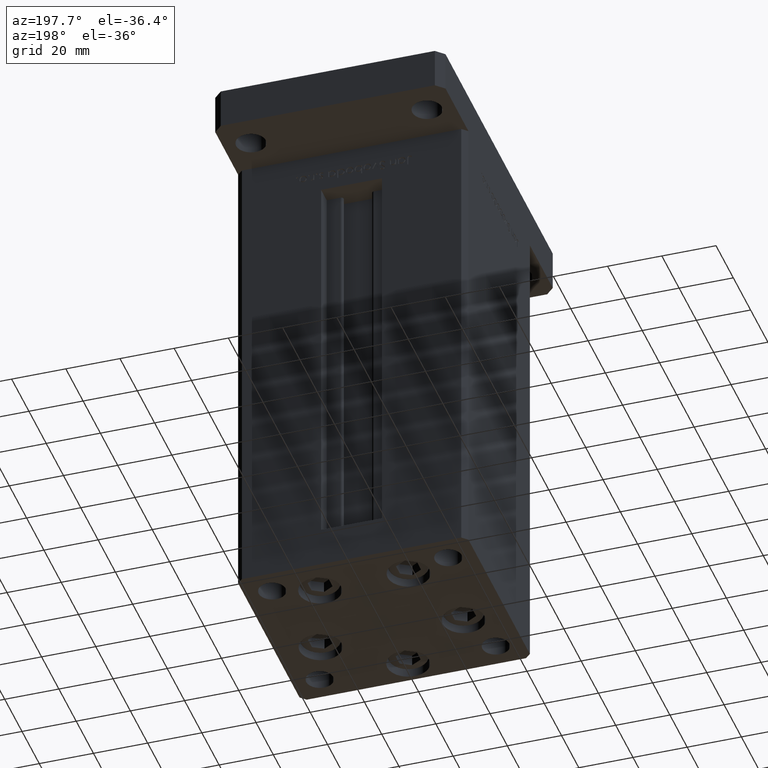
[diagram: clean part render]
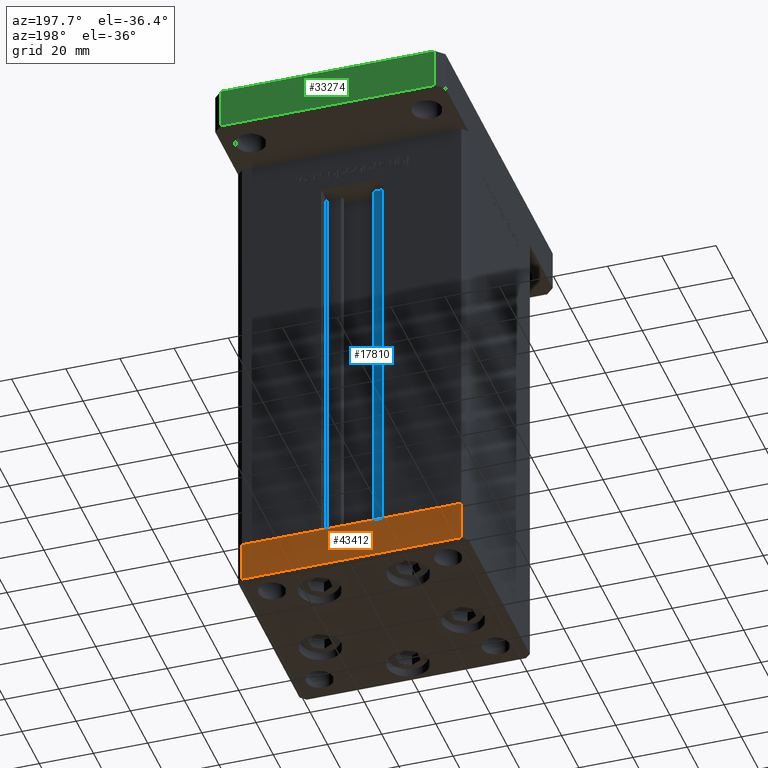
[diagram: same view with three faces highlighted in distinct colors, each labeled with its STEP entity id]
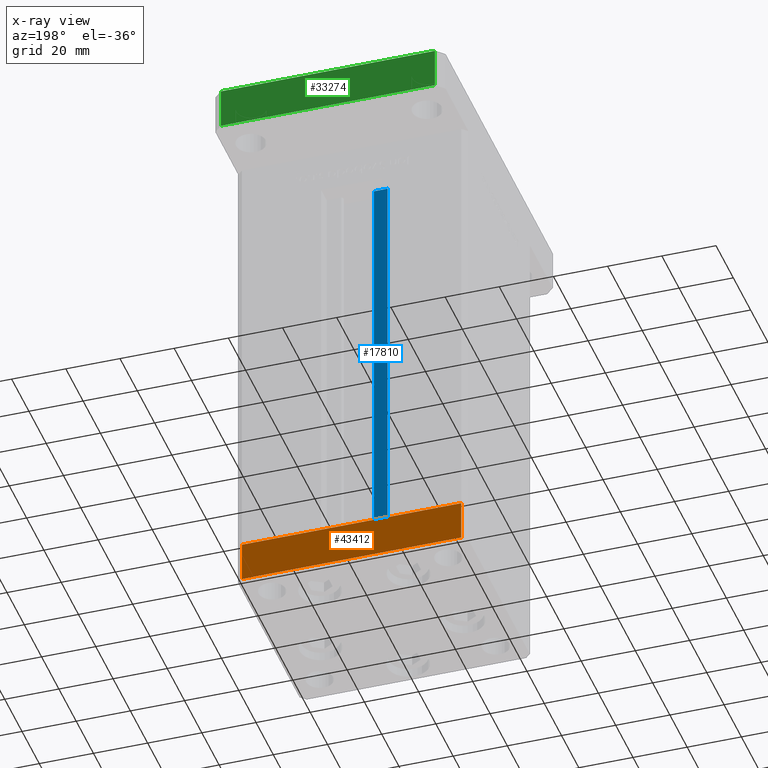
[diagram: x-ray of the same camera — body ghosted, the three highlighted faces saturated]
A machine part, auxiliary view with three faces highlighted in distinct colors.
The next image is the same camera in x-ray (body ghosted, the three faces saturated) — at least one of them is partly hidden behind the body in this view.
Their STEP definitions:

[orange] entity #43412 — the highlighted planar face has unit normal (0, 1, 0).
#1749 = CARTESIAN_POINT ( 'NONE',  ( -40.50000000000000711, 37.49999999999997868, 0.000000000000000000 ) ) ;
#2444 = EDGE_CURVE ( 'NONE', #38601, #42583, #44340, .T. ) ;
#4690 = DIRECTION ( 'NONE',  ( -1.000000000000000000, -3.426614273534436165E-16, 0.000000000000000000 ) ) ;
#7952 = DIRECTION ( 'NONE',  ( -3.426614273534436165E-16, 1.000000000000000000, 0.000000000000000000 ) ) ;
#8757 = LINE ( 'NONE', #25283, #13433 ) ;
#9823 = VERTEX_POINT ( 'NONE', #15155 ) ;
#10328 = VECTOR ( 'NONE', #46854, 1000.000000000000000 ) ;
#10612 = EDGE_CURVE ( 'NONE', #9823, #42294, #52061, .T. ) ;
#11037 = VECTOR ( 'NONE', #23554, 1000.000000000000000 ) ;
#13433 = VECTOR ( 'NONE', #4690, 1000.000000000000000 ) ;
#14310 = ORIENTED_EDGE ( 'NONE', *, *, #2444, .F. ) ;
#15104 = VECTOR ( 'NONE', #18605, 1000.000000000000000 ) ;
#15155 = CARTESIAN_POINT ( 'NONE',  ( -40.50000000000000711, 37.49999999999997868, -15.00000000000000000 ) ) ;
#16731 = EDGE_CURVE ( 'NONE', #42583, #42294, #43056, .T. ) ;
#17418 = EDGE_LOOP ( 'NONE', ( #21980, #14310, #30340, #38480 ) ) ;
#18605 = DIRECTION ( 'NONE',  ( 0.000000000000000000, 0.000000000000000000, 1.000000000000000000 ) ) ;
#21980 = ORIENTED_EDGE ( 'NONE', *, *, #16731, .F. ) ;
#22643 = CARTESIAN_POINT ( 'NONE',  ( 40.49999999999991473, 37.50000000000000711, -15.00000000000000000 ) ) ;
#23554 = DIRECTION ( 'NONE',  ( 0.000000000000000000, 0.000000000000000000, 1.000000000000000000 ) ) ;
#24490 = DIRECTION ( 'NONE',  ( -1.000000000000000000, -3.426614273534436165E-16, 0.000000000000000000 ) ) ;
#25283 = CARTESIAN_POINT ( 'NONE',  ( 40.49999999999991473, 37.50000000000000711, -15.00000000000000000 ) ) ;
#28557 = PLANE ( 'NONE',  #41141 ) ;
#30340 = ORIENTED_EDGE ( 'NONE', *, *, #46828, .T. ) ;
#30656 = CARTESIAN_POINT ( 'NONE',  ( 40.49999999999991473, 37.50000000000000711, -15.00000000000000000 ) ) ;
#30832 = CARTESIAN_POINT ( 'NONE',  ( 40.49999999999991473, 37.50000000000000711, 0.000000000000000000 ) ) ;
#32365 = FACE_OUTER_BOUND ( 'NONE', #17418, .T. ) ;
#36431 = CARTESIAN_POINT ( 'NONE',  ( 40.49999999999991473, 37.50000000000000711, -15.00000000000000000 ) ) ;
#38480 = ORIENTED_EDGE ( 'NONE', *, *, #10612, .T. ) ;
#38601 = VERTEX_POINT ( 'NONE', #30656 ) ;
#38821 = CARTESIAN_POINT ( 'NONE',  ( 40.49999999999991473, 37.50000000000000711, 0.000000000000000000 ) ) ;
#41141 = AXIS2_PLACEMENT_3D ( 'NONE', #36431, #7952, #24490 ) ;
#42294 = VERTEX_POINT ( 'NONE', #1749 ) ;
#42583 = VERTEX_POINT ( 'NONE', #38821 ) ;
#43056 = LINE ( 'NONE', #30832, #10328 ) ;
#43412 = ADVANCED_FACE ( 'NONE', ( #32365 ), #28557, .T. ) ;
#44340 = LINE ( 'NONE', #22643, #15104 ) ;
#46828 = EDGE_CURVE ( 'NONE', #38601, #9823, #8757, .T. ) ;
#46854 = DIRECTION ( 'NONE',  ( -1.000000000000000000, -3.426614273534436165E-16, 0.000000000000000000 ) ) ;
#51796 = CARTESIAN_POINT ( 'NONE',  ( -40.50000000000000711, 37.49999999999997868, -15.00000000000000000 ) ) ;
#52061 = LINE ( 'NONE', #51796, #11037 ) ;

[blue] entity #17810 — the highlighted planar face has unit normal (0, -1, 0).
#566 = LINE ( 'NONE', #49659, #38577 ) ;
#1089 = ORIENTED_EDGE ( 'NONE', *, *, #44500, .T. ) ;
#3503 = VECTOR ( 'NONE', #7234, 1000.000000000000000 ) ;
#4913 = CARTESIAN_POINT ( 'NONE',  ( -11.25000000000000000, 30.99999999999999289, 0.000000000000000000 ) ) ;
#5031 = CARTESIAN_POINT ( 'NONE',  ( -6.183333333333999704, 30.99999999999999289, 0.000000000000000000 ) ) ;
#5698 = CARTESIAN_POINT ( 'NONE',  ( -11.25000000000000000, 30.99999999999999289, 148.5000000000000000 ) ) ;
#7234 = DIRECTION ( 'NONE',  ( -0.000000000000000000, -0.000000000000000000, 1.000000000000000000 ) ) ;
#10776 = LINE ( 'NONE', #39519, #3503 ) ;
#11417 = VERTEX_POINT ( 'NONE', #50200 ) ;
#11880 = CARTESIAN_POINT ( 'NONE',  ( -6.183333333333999704, 30.99999999999999289, 0.000000000000000000 ) ) ;
#14001 = ORIENTED_EDGE ( 'NONE', *, *, #28727, .F. ) ;
#14133 = EDGE_CURVE ( 'NONE', #26397, #11417, #49560, .T. ) ;
#16990 = LINE ( 'NONE', #50058, #20005 ) ;
#17123 = DIRECTION ( 'NONE',  ( -0.000000000000000000, -0.000000000000000000, 1.000000000000000000 ) ) ;
#17525 = DIRECTION ( 'NONE',  ( 0.000000000000000000, -1.000000000000000000, -0.000000000000000000 ) ) ;
#17796 = DIRECTION ( 'NONE',  ( 0.000000000000000000, 0.000000000000000000, -1.000000000000000000 ) ) ;
#17810 = ADVANCED_FACE ( 'NONE', ( #52552 ), #33500, .F. ) ;
#20005 = VECTOR ( 'NONE', #42191, 1000.000000000000000 ) ;
#23228 = EDGE_LOOP ( 'NONE', ( #14001, #25381, #1089, #45833 ) ) ;
#24076 = DIRECTION ( 'NONE',  ( 1.000000000000000000, -0.000000000000000000, -0.000000000000000000 ) ) ;
#24832 = EDGE_CURVE ( 'NONE', #48520, #53185, #16990, .T. ) ;
#24967 = VECTOR ( 'NONE', #24076, 1000.000000000000000 ) ;
#25381 = ORIENTED_EDGE ( 'NONE', *, *, #14133, .F. ) ;
#26397 = VERTEX_POINT ( 'NONE', #4913 ) ;
#28727 = EDGE_CURVE ( 'NONE', #11417, #48520, #10776, .T. ) ;
#33500 = PLANE ( 'NONE',  #41402 ) ;
#34598 = CARTESIAN_POINT ( 'NONE',  ( -6.183333333333999704, 30.99999999999999289, 148.5000000000000000 ) ) ;
#38577 = VECTOR ( 'NONE', #17123, 1000.000000000000000 ) ;
#39519 = CARTESIAN_POINT ( 'NONE',  ( -6.183333333333999704, 30.99999999999999289, 0.000000000000000000 ) ) ;
#41402 = AXIS2_PLACEMENT_3D ( 'NONE', #5031, #17525, #17796 ) ;
#42191 = DIRECTION ( 'NONE',  ( -1.000000000000000000, 0.000000000000000000, 0.000000000000000000 ) ) ;
#44500 = EDGE_CURVE ( 'NONE', #26397, #53185, #566, .T. ) ;
#45833 = ORIENTED_EDGE ( 'NONE', *, *, #24832, .F. ) ;
#48520 = VERTEX_POINT ( 'NONE', #34598 ) ;
#49560 = LINE ( 'NONE', #11880, #24967 ) ;
#49659 = CARTESIAN_POINT ( 'NONE',  ( -11.25000000000000000, 30.99999999999999289, 0.000000000000000000 ) ) ;
#50058 = CARTESIAN_POINT ( 'NONE',  ( 0.000000000000000000, 30.99999999999999289, 148.5000000000000000 ) ) ;
#50200 = CARTESIAN_POINT ( 'NONE',  ( -6.183333333333999704, 30.99999999999999289, 0.000000000000000000 ) ) ;
#52552 = FACE_OUTER_BOUND ( 'NONE', #23228, .T. ) ;
#53185 = VERTEX_POINT ( 'NONE', #5698 ) ;

[green] entity #33274 — the highlighted planar face has unit normal (0, -1, 0).
#2207 = VERTEX_POINT ( 'NONE', #53614 ) ;
#3308 = VERTEX_POINT ( 'NONE', #25485 ) ;
#3325 = FACE_OUTER_BOUND ( 'NONE', #12010, .T. ) ;
#4528 = AXIS2_PLACEMENT_3D ( 'NONE', #25494, #49403, #36904 ) ;
#5475 = ORIENTED_EDGE ( 'NONE', *, *, #13530, .F. ) ;
#6934 = VERTEX_POINT ( 'NONE', #47337 ) ;
#7064 = DIRECTION ( 'NONE',  ( -0.000000000000000000, -0.000000000000000000, -1.000000000000000000 ) ) ;
#7594 = CARTESIAN_POINT ( 'NONE',  ( 39.50000000000002842, 65.00000000000002842, 15.00000000000000000 ) ) ;
#8135 = CARTESIAN_POINT ( 'NONE',  ( 39.50000000000002842, 65.00000000000002842, 0.000000000000000000 ) ) ;
#9480 = ORIENTED_EDGE ( 'NONE', *, *, #43584, .F. ) ;
#12010 = EDGE_LOOP ( 'NONE', ( #27897, #9480, #5475, #21409 ) ) ;
#13530 = EDGE_CURVE ( 'NONE', #34482, #3308, #34601, .T. ) ;
#14818 = DIRECTION ( 'NONE',  ( -1.000000000000000000, -3.513364001978340512E-16, 0.000000000000000000 ) ) ;
#15081 = CARTESIAN_POINT ( 'NONE',  ( 39.50000000000002842, 65.00000000000002842, 15.00000000000000000 ) ) ;
#15183 = CARTESIAN_POINT ( 'NONE',  ( -39.50000000000003553, 65.00000000000000000, 15.00000000000000000 ) ) ;
#15772 = DIRECTION ( 'NONE',  ( -1.000000000000000000, -3.513364001978340512E-16, 0.000000000000000000 ) ) ;
#17474 = VECTOR ( 'NONE', #15772, 1000.000000000000000 ) ;
#19872 = PLANE ( 'NONE',  #4528 ) ;
#21409 = ORIENTED_EDGE ( 'NONE', *, *, #38609, .T. ) ;
#25485 = CARTESIAN_POINT ( 'NONE',  ( -39.50000000000003553, 65.00000000000000000, 15.00000000000000000 ) ) ;
#25494 = CARTESIAN_POINT ( 'NONE',  ( 39.50000000000002842, 65.00000000000002842, 15.00000000000000000 ) ) ;
#27897 = ORIENTED_EDGE ( 'NONE', *, *, #31865, .T. ) ;
#28887 = VECTOR ( 'NONE', #7064, 1000.000000000000000 ) ;
#31173 = DIRECTION ( 'NONE',  ( -0.000000000000000000, -0.000000000000000000, -1.000000000000000000 ) ) ;
#31865 = EDGE_CURVE ( 'NONE', #6934, #2207, #45309, .T. ) ;
#33262 = VECTOR ( 'NONE', #31173, 1000.000000000000000 ) ;
#33274 = ADVANCED_FACE ( 'NONE', ( #3325 ), #19872, .F. ) ;
#34482 = VERTEX_POINT ( 'NONE', #42547 ) ;
#34601 = LINE ( 'NONE', #15081, #35359 ) ;
#35359 = VECTOR ( 'NONE', #14818, 1000.000000000000000 ) ;
#36904 = DIRECTION ( 'NONE',  ( 1.000000000000000000, 3.513364001978341005E-16, 0.000000000000000000 ) ) ;
#38609 = EDGE_CURVE ( 'NONE', #34482, #6934, #43957, .T. ) ;
#42547 = CARTESIAN_POINT ( 'NONE',  ( 39.50000000000002842, 65.00000000000002842, 15.00000000000000000 ) ) ;
#43584 = EDGE_CURVE ( 'NONE', #3308, #2207, #48265, .T. ) ;
#43957 = LINE ( 'NONE', #7594, #28887 ) ;
#45309 = LINE ( 'NONE', #8135, #17474 ) ;
#47337 = CARTESIAN_POINT ( 'NONE',  ( 39.50000000000002842, 65.00000000000002842, 0.000000000000000000 ) ) ;
#48265 = LINE ( 'NONE', #15183, #33262 ) ;
#49403 = DIRECTION ( 'NONE',  ( 3.513364001978341005E-16, -1.000000000000000000, 0.000000000000000000 ) ) ;
#53614 = CARTESIAN_POINT ( 'NONE',  ( -39.50000000000003553, 65.00000000000000000, 0.000000000000000000 ) ) ;